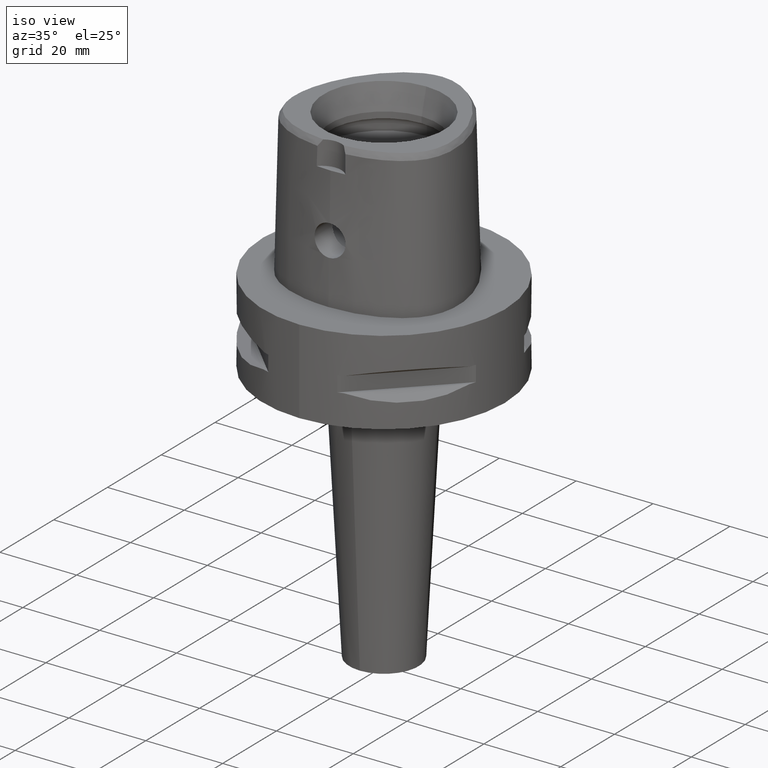
[diagram: clean part render]
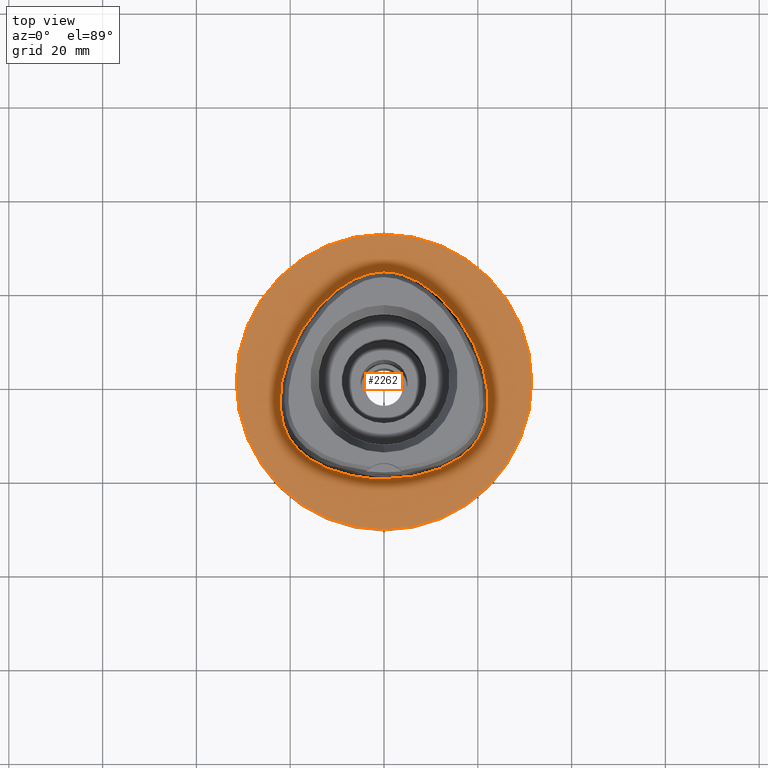
[diagram: tour spotlight — one face highlighted and labeled with its STEP entity id]
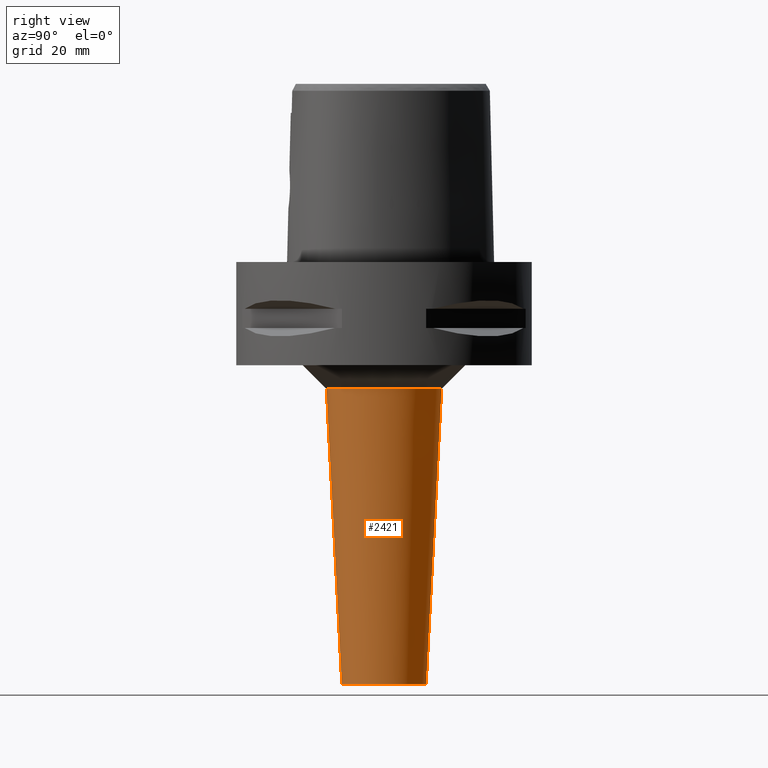
[diagram: tour spotlight — one face highlighted and labeled with its STEP entity id]
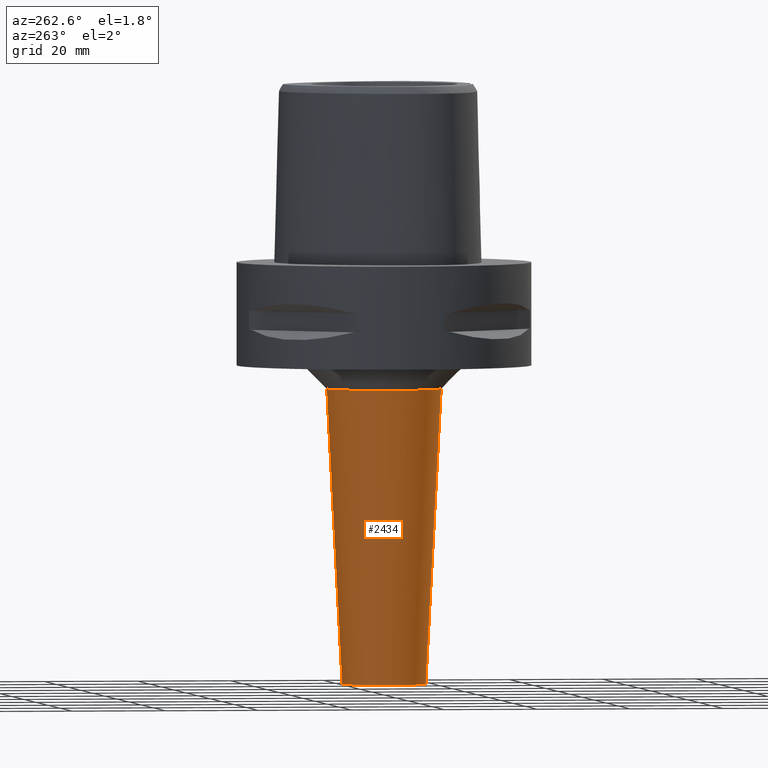
[diagram: tour spotlight — one face highlighted and labeled with its STEP entity id]
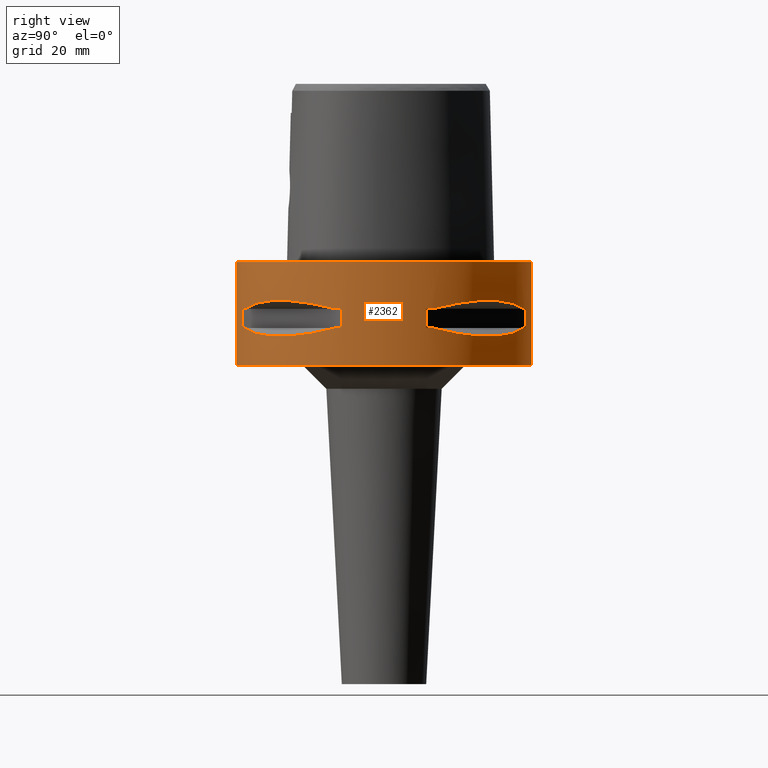
[diagram: tour spotlight — one face highlighted and labeled with its STEP entity id]
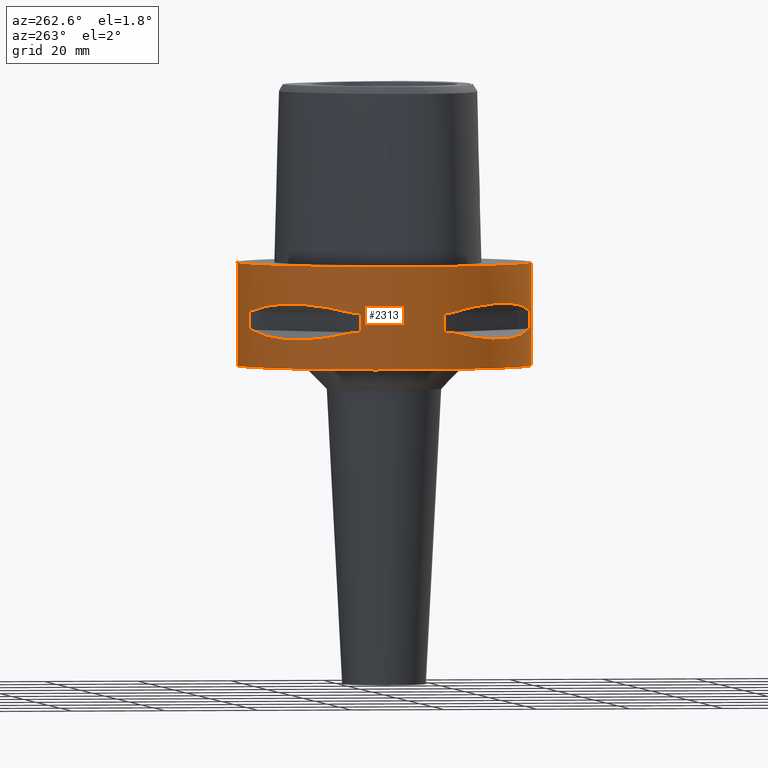
[diagram: tour spotlight — one face highlighted and labeled with its STEP entity id]
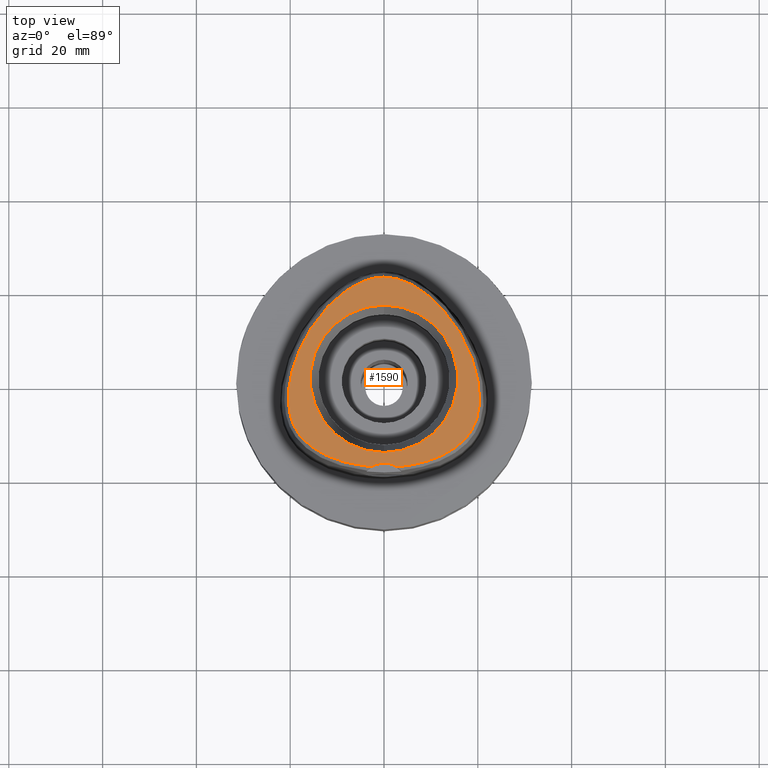
[diagram: tour spotlight — one face highlighted and labeled with its STEP entity id]
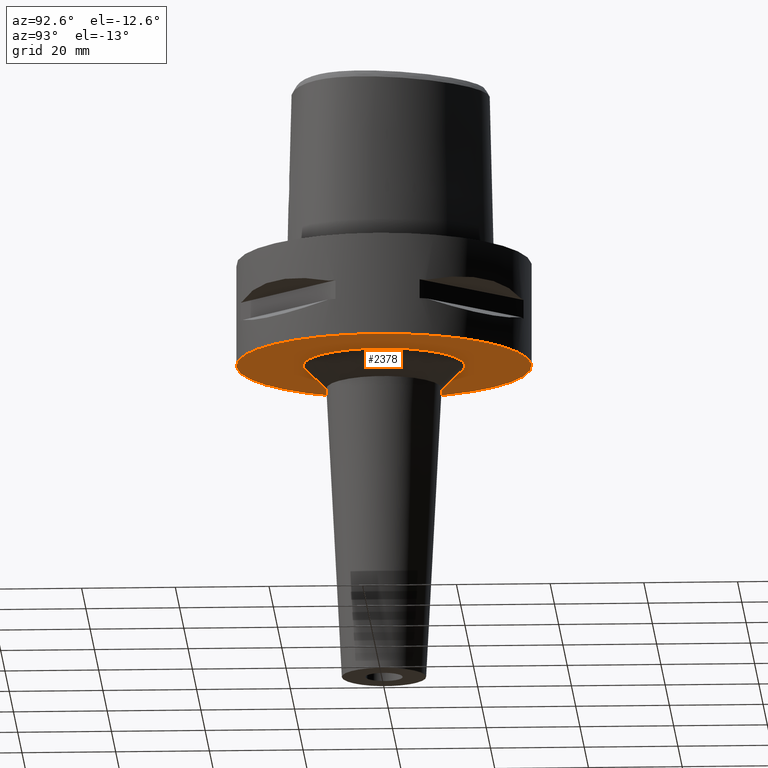
[diagram: tour spotlight — one face highlighted and labeled with its STEP entity id]
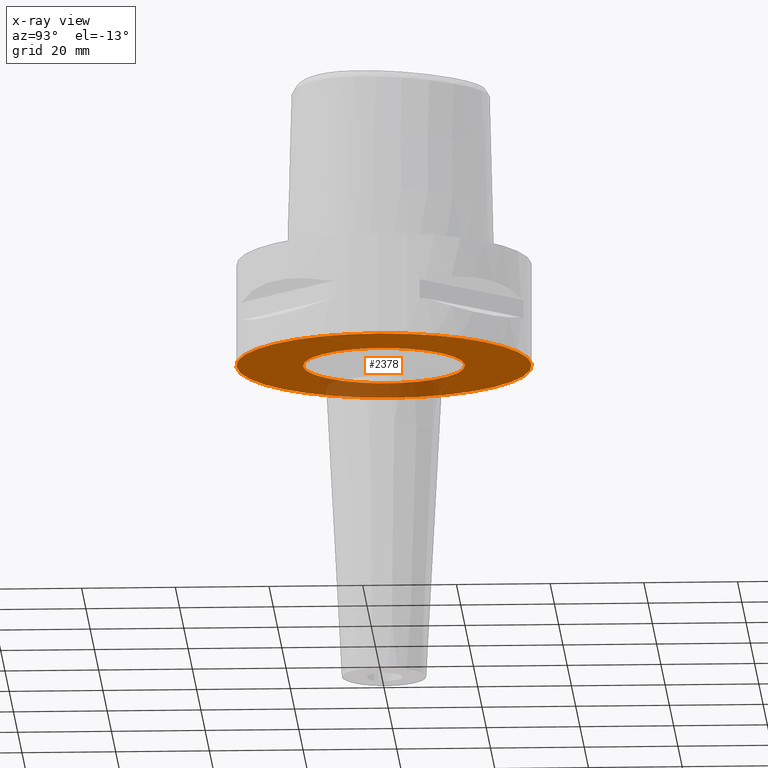
[diagram: x-ray of the same camera — body ghosted, this tour face saturated]
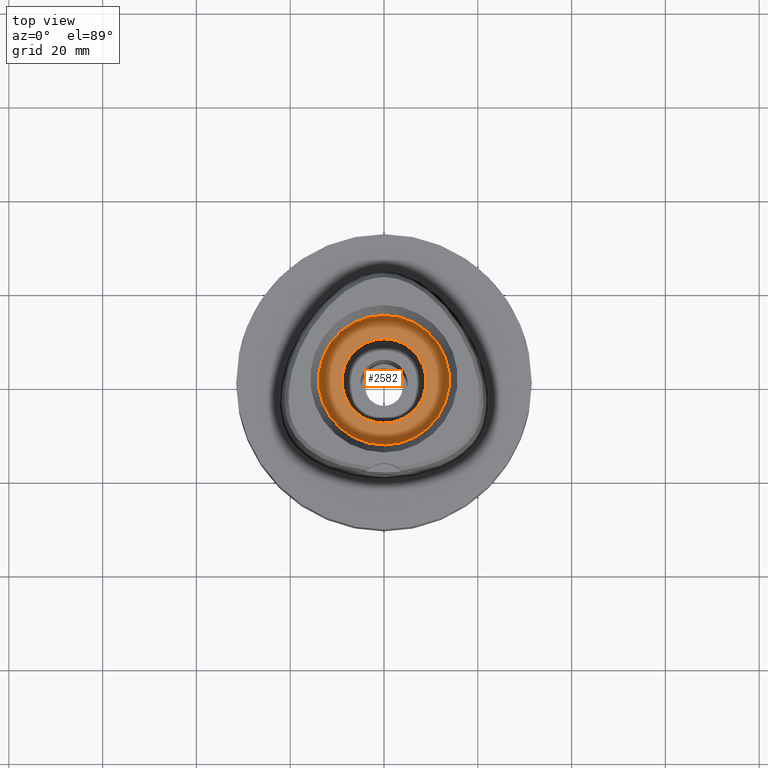
[diagram: tour spotlight — one face highlighted and labeled with its STEP entity id]
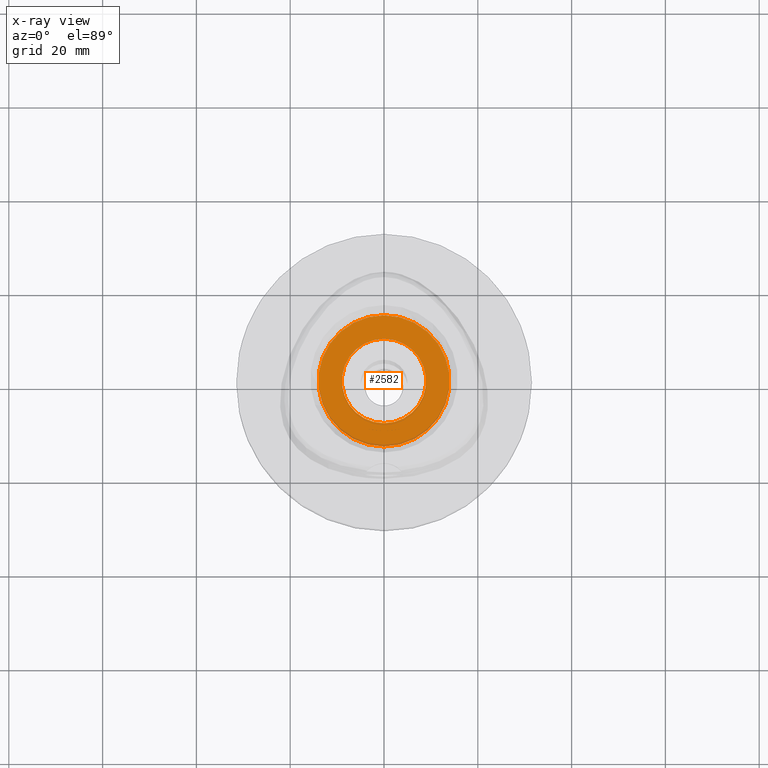
[diagram: x-ray of the same camera — body ghosted, this tour face saturated]
A machine part: a face-by-face anatomy tour. The part has 62 B-rep faces; the first image is the clean iso view, then the 8 largest visible faces are spotlighted one at a time (largest first), each with its STEP entity span.

Face 1 — top view, entity #2262. In plain terms, the highlighted planar face has unit normal (0, 0, -1).
Definition (entity closure, byte-faithful):
#292=CARTESIAN_POINT('',(0.E0,0.E0,0.E0));
#293=DIRECTION('',(0.E0,0.E0,-1.E0));
#294=DIRECTION('',(0.E0,-1.E0,0.E0));
#295=AXIS2_PLACEMENT_3D('',#292,#293,#294);
#300=CARTESIAN_POINT('',(0.E0,0.E0,0.E0));
#301=DIRECTION('',(0.E0,0.E0,-1.E0));
#302=DIRECTION('',(0.E0,1.E0,0.E0));
#303=AXIS2_PLACEMENT_3D('',#300,#301,#302);
#308=CARTESIAN_POINT('',(-1.044767888871E-11,-2.0675E1,1.298960938811E-13));
#309=CARTESIAN_POINT('',(9.158423632127E-1,-2.0675E1,1.298960938811E-13));
#310=CARTESIAN_POINT('',(2.716408396290E0,-2.060526959758E1,
-6.028498697032E-14));
#311=CARTESIAN_POINT('',(5.360849041373E0,-2.029895710666E1,
1.615331357442E-14));
#312=CARTESIAN_POINT('',(7.838067988409E0,-1.981278372945E1,0.E0));
#313=CARTESIAN_POINT('',(1.010273943016E1,-1.917806078717E1,0.E0));
#314=CARTESIAN_POINT('',(1.212665494295E1,-1.842788899745E1,0.E0));
#315=CARTESIAN_POINT('',(1.390528348451E1,-1.759281504158E1,0.E0));
#316=CARTESIAN_POINT('',(1.544933729303E1,-1.669720468576E1,0.E0));
#317=CARTESIAN_POINT('',(1.677709919822E1,-1.575929356149E1,0.E0));
#318=CARTESIAN_POINT('',(1.791070168285E1,-1.479064588104E1,0.E0));
#319=CARTESIAN_POINT('',(1.887150357261E1,-1.379790189981E1,0.E0));
#320=CARTESIAN_POINT('',(1.967839891391E1,-1.278369248367E1,0.E0));
#321=CARTESIAN_POINT('',(2.034936091072E1,-1.174528212922E1,0.E0));
#322=CARTESIAN_POINT('',(2.091159017696E1,-1.064674429548E1,0.E0));
#323=CARTESIAN_POINT('',(2.138527596063E1,-9.443658971421E0,0.E0));
#324=CARTESIAN_POINT('',(2.176498967857E1,-8.113513566853E0,0.E0));
#325=CARTESIAN_POINT('',(2.203671366422E1,-6.648064250119E0,0.E0));
#326=CARTESIAN_POINT('',(2.218501817423E1,-5.028396779115E0,0.E0));
#327=CARTESIAN_POINT('',(2.218834029708E1,-3.242572919162E0,0.E0));
#328=CARTESIAN_POINT('',(2.202182546398E1,-1.283710492372E0,0.E0));
#329=CARTESIAN_POINT('',(2.165887442515E1,8.453603315048E-1,0.E0));
#330=CARTESIAN_POINT('',(2.107560380030E1,3.124759078298E0,0.E0));
#331=CARTESIAN_POINT('',(2.025646054374E1,5.515187041284E0,0.E0));
#332=CARTESIAN_POINT('',(1.920073190327E1,7.955493648484E0,0.E0));
#333=CARTESIAN_POINT('',(1.792967904165E1,1.036468909786E1,0.E0));
#334=CARTESIAN_POINT('',(1.647710613861E1,1.266943998868E1,0.E0));
#335=CARTESIAN_POINT('',(1.489108143112E1,1.480166284189E1,0.E0));
#336=CARTESIAN_POINT('',(1.323030500653E1,1.670402183111E1,0.E0));
#337=CARTESIAN_POINT('',(1.154826681381E1,1.834637767515E1,0.E0));
#338=CARTESIAN_POINT('',(9.886689898430E0,1.972279202940E1,0.E0));
#339=CARTESIAN_POINT('',(8.274412956712E0,2.084428429182E1,0.E0));
#340=CARTESIAN_POINT('',(6.727228941432E0,2.173241213456E1,0.E0));
#341=CARTESIAN_POINT('',(5.251300805532E0,2.241232518975E1,0.E0));
#342=CARTESIAN_POINT('',(3.846167454409E0,2.290873349726E1,0.E0));
#343=CARTESIAN_POINT('',(2.506219438543E0,2.324356530458E1,1.578974896690E-14));
#344=CARTESIAN_POINT('',(1.225948313822E0,2.343451067084E1,
-5.892814538324E-14));
#345=CARTESIAN_POINT('',(4.030405167281E-1,2.347499999999E1,
1.269725065830E-13));
#346=CARTESIAN_POINT('',(5.434977773944E-11,2.347499999999E1,
1.269725065830E-13));
#351=CARTESIAN_POINT('',(5.434977773944E-11,2.347499999999E1,
1.269725065830E-13));
#352=CARTESIAN_POINT('',(-4.030501311839E-1,2.347499999999E1,
1.269725065830E-13));
#353=CARTESIAN_POINT('',(-1.225941998256E0,2.343451160779E1,
-5.892814538324E-14));
#354=CARTESIAN_POINT('',(-2.506176665873E0,2.324356707891E1,
1.578974896690E-14));
#355=CARTESIAN_POINT('',(-3.845796668516E0,2.290883543718E1,0.E0));
#356=CARTESIAN_POINT('',(-5.250746147550E0,2.241254569104E1,0.E0));
#357=CARTESIAN_POINT('',(-6.726516064720E0,2.173277639394E1,0.E0));
#358=CARTESIAN_POINT('',(-8.273641246778E0,2.084477362547E1,0.E0));
#359=CARTESIAN_POINT('',(-9.885913422894E0,1.972338100359E1,0.E0));
#360=CARTESIAN_POINT('',(-1.154744726761E1,1.834711606382E1,0.E0));
#361=CARTESIAN_POINT('',(-1.322945947942E1,1.670490312677E1,0.E0));
#362=CARTESIAN_POINT('',(-1.488998375980E1,1.480301826078E1,0.E0));
#363=CARTESIAN_POINT('',(-1.647600663520E1,1.267100928078E1,0.E0));
#364=CARTESIAN_POINT('',(-1.792806340323E1,1.036743994301E1,0.E0));
#365=CARTESIAN_POINT('',(-1.919922487795E1,7.958616034094E0,0.E0));
#366=CARTESIAN_POINT('',(-2.025496370791E1,5.518994401160E0,0.E0));
#367=CARTESIAN_POINT('',(-2.107426163142E1,3.129172675912E0,0.E0));
#368=CARTESIAN_POINT('',(-2.165777423345E1,8.504171987537E-1,0.E0));
#369=CARTESIAN_POINT('',(-2.202111550992E1,-1.278299047426E0,0.E0));
#370=CARTESIAN_POINT('',(-2.218808757016E1,-3.236928503895E0,0.E0));
#371=CARTESIAN_POINT('',(-2.218526770248E1,-5.022718452615E0,0.E0));
#372=CARTESIAN_POINT('',(-2.203747271344E1,-6.642517845332E0,0.E0));
#373=CARTESIAN_POINT('',(-2.176617229092E1,-8.108523993480E0,0.E0));
#374=CARTESIAN_POINT('',(-2.138677834896E1,-9.439129148101E0,0.E0));
#375=CARTESIAN_POINT('',(-2.091376839585E1,-1.064202520385E1,0.E0));
#376=CARTESIAN_POINT('',(-2.035024914663E1,-1.174401299512E1,0.E0));
#377=CARTESIAN_POINT('',(-1.967806989895E1,-1.278412507066E1,0.E0));
#378=CARTESIAN_POINT('',(-1.887223540840E1,-1.379701833718E1,0.E0));
#379=CARTESIAN_POINT('',(-1.791140476887E1,-1.478999919802E1,0.E0));
#380=CARTESIAN_POINT('',(-1.677813911649E1,-1.575847054695E1,0.E0));
#381=CARTESIAN_POINT('',(-1.545062996871E1,-1.669637509083E1,0.E0));
#382=CARTESIAN_POINT('',(-1.390671501554E1,-1.759207676081E1,0.E0));
#383=CARTESIAN_POINT('',(-1.212778375120E1,-1.842742743536E1,0.E0));
#384=CARTESIAN_POINT('',(-1.010373641256E1,-1.917775025560E1,0.E0));
#385=CARTESIAN_POINT('',(-7.838492822531E0,-1.981269760954E1,0.E0));
#386=CARTESIAN_POINT('',(-5.361005632779E0,-2.029893781401E1,
1.615331357442E-14));
#387=CARTESIAN_POINT('',(-2.716376248306E0,-2.060527506761E1,
-6.028498697032E-14));
#388=CARTESIAN_POINT('',(-9.158142642990E-1,-2.0675E1,1.298960938811E-13));
#389=CARTESIAN_POINT('',(-1.044767888871E-11,-2.0675E1,1.298960938811E-13));
#1434=VERTEX_POINT('',#351);
#1435=VERTEX_POINT('',#389);
#1440=CARTESIAN_POINT('',(0.E0,-3.15E1,0.E0));
#1441=CARTESIAN_POINT('',(0.E0,3.15E1,0.E0));
#1442=VERTEX_POINT('',#1440);
#1443=VERTEX_POINT('',#1441);
#2246=CARTESIAN_POINT('',(0.E0,0.E0,0.E0));
#2247=DIRECTION('',(0.E0,0.E0,-1.E0));
#2248=DIRECTION('',(0.E0,-1.E0,0.E0));
#2249=AXIS2_PLACEMENT_3D('',#2246,#2247,#2248);
#2250=PLANE('',#2249);
#2252=ORIENTED_EDGE('',*,*,#2251,.T.);
#2254=ORIENTED_EDGE('',*,*,#2253,.T.);
#2255=EDGE_LOOP('',(#2252,#2254));
#2256=FACE_OUTER_BOUND('',#2255,.F.);
#2258=ORIENTED_EDGE('',*,*,#2257,.T.);
#2259=ORIENTED_EDGE('',*,*,#2229,.T.);
#2260=EDGE_LOOP('',(#2258,#2259));
#2261=FACE_BOUND('',#2260,.F.);
#296=CIRCLE('',#295,3.15E1);
#304=CIRCLE('',#303,3.15E1);
#347=B_SPLINE_CURVE_WITH_KNOTS('',3,(#308,#309,#310,#311,#312,#313,#314,#315,
#316,#317,#318,#319,#320,#321,#322,#323,#324,#325,#326,#327,#328,#329,#330,#331,
#332,#333,#334,#335,#336,#337,#338,#339,#340,#341,#342,#343,#344,#345,#346),
.UNSPECIFIED.,.F.,.F.,(4,1,1,1,1,1,1,1,1,1,1,1,1,1,1,1,1,1,1,1,1,1,1,1,1,1,1,1,
1,1,1,1,1,1,1,1,4),(0.E0,2.777777777778E-2,5.555555555556E-2,8.333333333333E-2,
1.111111111111E-1,1.388888888889E-1,1.666666666667E-1,1.944444444444E-1,
2.222222222222E-1,2.5E-1,2.777777777778E-1,3.055555555556E-1,3.333333333333E-1,
3.611111111111E-1,3.888888888889E-1,4.166666666667E-1,4.444444444444E-1,
4.722222222222E-1,5.E-1,5.277777777778E-1,5.555555555556E-1,5.833333333333E-1,
6.111111111111E-1,6.388888888889E-1,6.666666666667E-1,6.944444444444E-1,
7.222222222222E-1,7.5E-1,7.777777777778E-1,8.055555555556E-1,8.333333333333E-1,
8.611111111111E-1,8.888888888889E-1,9.166666666667E-1,9.444444444444E-1,
9.722222222222E-1,1.E0),.UNSPECIFIED.);
#390=B_SPLINE_CURVE_WITH_KNOTS('',3,(#351,#352,#353,#354,#355,#356,#357,#358,
#359,#360,#361,#362,#363,#364,#365,#366,#367,#368,#369,#370,#371,#372,#373,#374,
#375,#376,#377,#378,#379,#380,#381,#382,#383,#384,#385,#386,#387,#388,#389),
.UNSPECIFIED.,.F.,.F.,(4,1,1,1,1,1,1,1,1,1,1,1,1,1,1,1,1,1,1,1,1,1,1,1,1,1,1,1,
1,1,1,1,1,1,1,1,4),(0.E0,2.777777777778E-2,5.555555555556E-2,8.333333333333E-2,
1.111111111111E-1,1.388888888889E-1,1.666666666667E-1,1.944444444444E-1,
2.222222222222E-1,2.5E-1,2.777777777778E-1,3.055555555556E-1,3.333333333333E-1,
3.611111111111E-1,3.888888888889E-1,4.166666666667E-1,4.444444444444E-1,
4.722222222222E-1,5.E-1,5.277777777778E-1,5.555555555556E-1,5.833333333333E-1,
6.111111111111E-1,6.388888888889E-1,6.666666666667E-1,6.944444444444E-1,
7.222222222222E-1,7.5E-1,7.777777777778E-1,8.055555555556E-1,8.333333333333E-1,
8.611111111111E-1,8.888888888889E-1,9.166666666667E-1,9.444444444444E-1,
9.722222222222E-1,1.E0),.UNSPECIFIED.);
#2229=EDGE_CURVE('',#1434,#1435,#390,.T.);
#2251=EDGE_CURVE('',#1442,#1443,#296,.T.);
#2253=EDGE_CURVE('',#1443,#1442,#304,.T.);
#2257=EDGE_CURVE('',#1435,#1434,#347,.T.);
#2262=ADVANCED_FACE('',(#2256,#2261),#2250,.F.);

Face 2 — right view, entity #2421. In plain terms, the highlighted conical surface has half-angle 3 deg.
Definition (entity closure, byte-faithful):
#562=DIRECTION('',(0.E0,-5.233595624292E-2,-9.986295347546E-1));
#563=VECTOR('',#562,6.308645779787E1);
#564=CARTESIAN_POINT('',(0.E0,1.230169009483E1,-2.7E1));
#565=LINE('',#564,#563);
#569=CARTESIAN_POINT('',(0.E0,0.E0,-2.7E1));
#570=DIRECTION('',(0.E0,0.E0,1.E0));
#571=DIRECTION('',(0.E0,-1.E0,0.E0));
#572=AXIS2_PLACEMENT_3D('',#569,#570,#571);
#577=DIRECTION('',(0.E0,5.233595624292E-2,-9.986295347546E-1));
#578=VECTOR('',#577,6.308645779787E1);
#579=CARTESIAN_POINT('',(0.E0,-1.230169009483E1,-2.7E1));
#580=LINE('',#579,#578);
#584=CARTESIAN_POINT('',(0.E0,0.E0,-9.E1));
#585=DIRECTION('',(0.E0,0.E0,1.E0));
#586=DIRECTION('',(0.E0,-1.E0,0.E0));
#587=AXIS2_PLACEMENT_3D('',#584,#585,#586);
#1504=CARTESIAN_POINT('',(0.E0,1.230169009483E1,-2.7E1));
#1505=VERTEX_POINT('',#1504);
#1506=CARTESIAN_POINT('',(0.E0,-1.230169009483E1,-2.7E1));
#1507=VERTEX_POINT('',#1506);
#1508=CARTESIAN_POINT('',(0.E0,9.000000000003E0,-9.E1));
#1509=VERTEX_POINT('',#1508);
#1510=CARTESIAN_POINT('',(0.E0,-9.000000000004E0,-9.E1));
#1511=VERTEX_POINT('',#1510);
#2407=CARTESIAN_POINT('',(0.E0,0.E0,-5.85E1));
#2408=DIRECTION('',(0.E0,0.E0,1.E0));
#2409=DIRECTION('',(0.E0,1.E0,0.E0));
#2410=AXIS2_PLACEMENT_3D('',#2407,#2408,#2409);
#2411=CONICAL_SURFACE('',#2410,1.065084504742E1,3.E0);
#2413=ORIENTED_EDGE('',*,*,#2412,.T.);
#2415=ORIENTED_EDGE('',*,*,#2414,.F.);
#2417=ORIENTED_EDGE('',*,*,#2416,.F.);
#2418=ORIENTED_EDGE('',*,*,#2400,.T.);
#2419=EDGE_LOOP('',(#2413,#2415,#2417,#2418));
#2420=FACE_OUTER_BOUND('',#2419,.F.);
#573=CIRCLE('',#572,1.230169009484E1);
#588=CIRCLE('',#587,9.000000000004E0);
#2400=EDGE_CURVE('',#1507,#1505,#573,.T.);
#2412=EDGE_CURVE('',#1505,#1509,#565,.T.);
#2414=EDGE_CURVE('',#1511,#1509,#588,.T.);
#2416=EDGE_CURVE('',#1507,#1511,#580,.T.);
#2421=ADVANCED_FACE('',(#2420),#2411,.T.);

Face 3 — auxiliary view, entity #2434. In plain terms, the highlighted conical surface has half-angle 3 deg.
Definition (entity closure, byte-faithful):
#547=CARTESIAN_POINT('',(0.E0,0.E0,-2.7E1));
#548=DIRECTION('',(0.E0,0.E0,-1.E0));
#549=DIRECTION('',(0.E0,-1.E0,0.E0));
#550=AXIS2_PLACEMENT_3D('',#547,#548,#549);
#562=DIRECTION('',(0.E0,-5.233595624292E-2,-9.986295347546E-1));
#563=VECTOR('',#562,6.308645779787E1);
#564=CARTESIAN_POINT('',(0.E0,1.230169009483E1,-2.7E1));
#565=LINE('',#564,#563);
#577=DIRECTION('',(0.E0,5.233595624292E-2,-9.986295347546E-1));
#578=VECTOR('',#577,6.308645779787E1);
#579=CARTESIAN_POINT('',(0.E0,-1.230169009483E1,-2.7E1));
#580=LINE('',#579,#578);
#592=CARTESIAN_POINT('',(0.E0,0.E0,-9.E1));
#593=DIRECTION('',(0.E0,0.E0,1.E0));
#594=DIRECTION('',(0.E0,1.E0,0.E0));
#595=AXIS2_PLACEMENT_3D('',#592,#593,#594);
#1504=CARTESIAN_POINT('',(0.E0,1.230169009483E1,-2.7E1));
#1505=VERTEX_POINT('',#1504);
#1506=CARTESIAN_POINT('',(0.E0,-1.230169009483E1,-2.7E1));
#1507=VERTEX_POINT('',#1506);
#1508=CARTESIAN_POINT('',(0.E0,9.000000000003E0,-9.E1));
#1509=VERTEX_POINT('',#1508);
#1510=CARTESIAN_POINT('',(0.E0,-9.000000000004E0,-9.E1));
#1511=VERTEX_POINT('',#1510);
#2422=CARTESIAN_POINT('',(0.E0,0.E0,-5.85E1));
#2423=DIRECTION('',(0.E0,0.E0,1.E0));
#2424=DIRECTION('',(0.E0,1.E0,0.E0));
#2425=AXIS2_PLACEMENT_3D('',#2422,#2423,#2424);
#2426=CONICAL_SURFACE('',#2425,1.065084504742E1,3.E0);
#2427=ORIENTED_EDGE('',*,*,#2412,.F.);
#2428=ORIENTED_EDGE('',*,*,#2389,.F.);
#2429=ORIENTED_EDGE('',*,*,#2416,.T.);
#2431=ORIENTED_EDGE('',*,*,#2430,.F.);
#2432=EDGE_LOOP('',(#2427,#2428,#2429,#2431));
#2433=FACE_OUTER_BOUND('',#2432,.F.);
#551=CIRCLE('',#550,1.230169009483E1);
#596=CIRCLE('',#595,9.000000000004E0);
#2389=EDGE_CURVE('',#1507,#1505,#551,.T.);
#2412=EDGE_CURVE('',#1505,#1509,#565,.T.);
#2416=EDGE_CURVE('',#1507,#1511,#580,.T.);
#2430=EDGE_CURVE('',#1509,#1511,#596,.T.);
#2434=ADVANCED_FACE('',(#2433),#2426,.T.);

Face 4 — right view, entity #2362. In plain terms, the highlighted cylindrical surface (partial cylindrical patch) has radius 31.5 mm, axis along (0, 0, -1).
Definition (entity closure, byte-faithful):
#300=CARTESIAN_POINT('',(0.E0,0.E0,0.E0));
#301=DIRECTION('',(0.E0,0.E0,-1.E0));
#302=DIRECTION('',(0.E0,1.E0,0.E0));
#303=AXIS2_PLACEMENT_3D('',#300,#301,#302);
#394=DIRECTION('',(0.E0,0.E0,-1.E0));
#395=VECTOR('',#394,2.2E1);
#396=CARTESIAN_POINT('',(0.E0,-3.15E1,0.E0));
#397=LINE('',#396,#395);
#451=DIRECTION('',(0.E0,0.E0,-1.E0));
#452=VECTOR('',#451,2.2E1);
#453=CARTESIAN_POINT('',(0.E0,3.15E1,0.E0));
#454=LINE('',#453,#452);
#458=DIRECTION('',(0.E0,0.E0,-1.E0));
#459=VECTOR('',#458,4.1E0);
#460=CARTESIAN_POINT('',(8.981198972017E0,-3.019251670572E1,-9.95E0));
#461=LINE('',#460,#459);
#465=CARTESIAN_POINT('',(1.044775724750E1,-2.971690375018E1,-1.405E1));
#466=CARTESIAN_POINT('',(1.282388988809E1,-2.888151197365E1,-1.467900482380E1));
#467=CARTESIAN_POINT('',(1.711282138769E1,-2.674739463903E1,-1.555870402293E1));
#468=CARTESIAN_POINT('',(2.244574140438E1,-2.244574140438E1,-1.597971692371E1));
#469=CARTESIAN_POINT('',(2.674739463903E1,-1.711282138769E1,-1.555870402293E1));
#470=CARTESIAN_POINT('',(2.888151197365E1,-1.282388988809E1,-1.467900482380E1));
#471=CARTESIAN_POINT('',(2.971690375018E1,-1.044775724750E1,-1.405E1));
#476=DIRECTION('',(0.E0,0.E0,1.E0));
#477=VECTOR('',#476,4.1E0);
#478=CARTESIAN_POINT('',(3.019251670572E1,-8.981198972017E0,-1.405E1));
#479=LINE('',#478,#477);
#483=DIRECTION('',(0.E0,0.E0,-1.E0));
#484=VECTOR('',#483,4.1E0);
#485=CARTESIAN_POINT('',(3.019251670572E1,8.981198972017E0,-9.95E0));
#486=LINE('',#485,#484);
#490=CARTESIAN_POINT('',(2.971690375018E1,1.044775724750E1,-1.405E1));
#491=CARTESIAN_POINT('',(2.888151197365E1,1.282388988809E1,-1.467900482380E1));
#492=CARTESIAN_POINT('',(2.674739463903E1,1.711282138769E1,-1.555870402293E1));
#493=CARTESIAN_POINT('',(2.244574140438E1,2.244574140438E1,-1.597971692371E1));
#494=CARTESIAN_POINT('',(1.711282138769E1,2.674739463903E1,-1.555870402293E1));
#495=CARTESIAN_POINT('',(1.282388988809E1,2.888151197365E1,-1.467900482380E1));
#496=CARTESIAN_POINT('',(1.044775724750E1,2.971690375018E1,-1.405E1));
#501=DIRECTION('',(0.E0,0.E0,1.E0));
#502=VECTOR('',#501,4.1E0);
#503=CARTESIAN_POINT('',(8.981198972017E0,3.019251670572E1,-1.405E1));
#504=LINE('',#503,#502);
#508=CARTESIAN_POINT('',(0.E0,0.E0,-2.2E1));
#509=DIRECTION('',(0.E0,0.E0,1.E0));
#510=DIRECTION('',(0.E0,-1.E0,0.E0));
#511=AXIS2_PLACEMENT_3D('',#508,#509,#510);
#1130=CARTESIAN_POINT('',(1.044775724750E1,-2.971690375018E1,
-9.950000000001E0));
#1131=CARTESIAN_POINT('',(1.282388988809E1,-2.888151197365E1,
-9.320995176200E0));
#1132=CARTESIAN_POINT('',(1.711282138769E1,-2.674739463903E1,
-8.441295977077E0));
#1133=CARTESIAN_POINT('',(2.244574140438E1,-2.244574140438E1,
-8.020283076297E0));
#1134=CARTESIAN_POINT('',(2.674739463903E1,-1.711282138769E1,
-8.441295977077E0));
#1135=CARTESIAN_POINT('',(2.888151197365E1,-1.282388988809E1,
-9.320995176200E0));
#1136=CARTESIAN_POINT('',(2.971690375018E1,-1.044775724750E1,
-9.950000000001E0));
#1141=CARTESIAN_POINT('',(0.E0,0.E0,-9.95E0));
#1142=DIRECTION('',(0.E0,0.E0,1.E0));
#1143=DIRECTION('',(9.433937698469E-1,-3.316748332541E-1,0.E0));
#1144=AXIS2_PLACEMENT_3D('',#1141,#1142,#1143);
#1149=CARTESIAN_POINT('',(0.E0,0.E0,-9.95E0));
#1150=DIRECTION('',(0.E0,0.E0,1.E0));
#1151=DIRECTION('',(2.851174276832E-1,-9.584925938323E-1,0.E0));
#1152=AXIS2_PLACEMENT_3D('',#1149,#1150,#1151);
#1171=CARTESIAN_POINT('',(0.E0,0.E0,-1.405E1));
#1172=DIRECTION('',(0.E0,0.E0,-1.E0));
#1173=DIRECTION('',(9.584925938323E-1,-2.851174276832E-1,0.E0));
#1174=AXIS2_PLACEMENT_3D('',#1171,#1172,#1173);
#1179=CARTESIAN_POINT('',(0.E0,0.E0,-1.405E1));
#1180=DIRECTION('',(0.E0,0.E0,-1.E0));
#1181=DIRECTION('',(3.316748332541E-1,-9.433937698469E-1,0.E0));
#1182=AXIS2_PLACEMENT_3D('',#1179,#1180,#1181);
#1201=CARTESIAN_POINT('',(2.971690375018E1,1.044775724750E1,-9.950000000001E0));
#1202=CARTESIAN_POINT('',(2.888151197365E1,1.282388988809E1,-9.320995176200E0));
#1203=CARTESIAN_POINT('',(2.674739463903E1,1.711282138769E1,-8.441295977077E0));
#1204=CARTESIAN_POINT('',(2.244574140438E1,2.244574140438E1,-8.020283076297E0));
#1205=CARTESIAN_POINT('',(1.711282138769E1,2.674739463903E1,-8.441295977077E0));
#1206=CARTESIAN_POINT('',(1.282388988809E1,2.888151197365E1,-9.320995176200E0));
#1207=CARTESIAN_POINT('',(1.044775724750E1,2.971690375018E1,-9.950000000001E0));
#1212=CARTESIAN_POINT('',(0.E0,0.E0,-9.95E0));
#1213=DIRECTION('',(0.E0,0.E0,1.E0));
#1214=DIRECTION('',(3.316748332541E-1,9.433937698469E-1,0.E0));
#1215=AXIS2_PLACEMENT_3D('',#1212,#1213,#1214);
#1220=CARTESIAN_POINT('',(0.E0,0.E0,-9.95E0));
#1221=DIRECTION('',(0.E0,0.E0,1.E0));
#1222=DIRECTION('',(9.584925938323E-1,2.851174276832E-1,0.E0));
#1223=AXIS2_PLACEMENT_3D('',#1220,#1221,#1222);
#1242=CARTESIAN_POINT('',(0.E0,0.E0,-1.405E1));
#1243=DIRECTION('',(0.E0,0.E0,-1.E0));
#1244=DIRECTION('',(2.851174276832E-1,9.584925938323E-1,0.E0));
#1245=AXIS2_PLACEMENT_3D('',#1242,#1243,#1244);
#1250=CARTESIAN_POINT('',(0.E0,0.E0,-1.405E1));
#1251=DIRECTION('',(0.E0,0.E0,-1.E0));
#1252=DIRECTION('',(9.433937698469E-1,3.316748332541E-1,0.E0));
#1253=AXIS2_PLACEMENT_3D('',#1250,#1251,#1252);
#1440=CARTESIAN_POINT('',(0.E0,-3.15E1,0.E0));
#1441=CARTESIAN_POINT('',(0.E0,3.15E1,0.E0));
#1442=VERTEX_POINT('',#1440);
#1443=VERTEX_POINT('',#1441);
#1444=CARTESIAN_POINT('',(0.E0,3.15E1,-2.2E1));
#1445=VERTEX_POINT('',#1444);
#1446=CARTESIAN_POINT('',(0.E0,-3.15E1,-2.2E1));
#1447=VERTEX_POINT('',#1446);
#1474=VERTEX_POINT('',#1130);
#1475=VERTEX_POINT('',#1136);
#1476=CARTESIAN_POINT('',(8.981198972020E0,-3.019251670572E1,-9.95E0));
#1477=VERTEX_POINT('',#1476);
#1478=CARTESIAN_POINT('',(8.981198972017E0,-3.019251670572E1,-1.405E1));
#1479=VERTEX_POINT('',#1478);
#1480=CARTESIAN_POINT('',(1.044775724750E1,-2.971690375018E1,-1.405E1));
#1481=VERTEX_POINT('',#1480);
#1482=VERTEX_POINT('',#471);
#1483=CARTESIAN_POINT('',(3.019251670572E1,-8.981198972020E0,-1.405E1));
#1484=VERTEX_POINT('',#1483);
#1485=CARTESIAN_POINT('',(3.019251670572E1,-8.981198972017E0,-9.95E0));
#1486=VERTEX_POINT('',#1485);
#1487=VERTEX_POINT('',#1201);
#1488=VERTEX_POINT('',#1207);
#1489=CARTESIAN_POINT('',(3.019251670572E1,8.981198972020E0,-9.95E0));
#1490=VERTEX_POINT('',#1489);
#1491=CARTESIAN_POINT('',(3.019251670572E1,8.981198972017E0,-1.405E1));
#1492=VERTEX_POINT('',#1491);
#1493=CARTESIAN_POINT('',(2.971690375018E1,1.044775724750E1,-1.405E1));
#1494=VERTEX_POINT('',#1493);
#1495=VERTEX_POINT('',#496);
#1496=CARTESIAN_POINT('',(8.981198972020E0,3.019251670572E1,-1.405E1));
#1497=VERTEX_POINT('',#1496);
#1498=CARTESIAN_POINT('',(8.981198972017E0,3.019251670572E1,-9.95E0));
#1499=VERTEX_POINT('',#1498);
#2314=CARTESIAN_POINT('',(0.E0,0.E0,4.5E0));
#2315=DIRECTION('',(0.E0,0.E0,-1.E0));
#2316=DIRECTION('',(0.E0,-1.E0,0.E0));
#2317=AXIS2_PLACEMENT_3D('',#2314,#2315,#2316);
#2318=CYLINDRICAL_SURFACE('',#2317,3.15E1);
#2319=ORIENTED_EDGE('',*,*,#2268,.T.);
#2321=ORIENTED_EDGE('',*,*,#2320,.F.);
#2322=ORIENTED_EDGE('',*,*,#2271,.F.);
#2323=ORIENTED_EDGE('',*,*,#2253,.F.);
#2324=EDGE_LOOP('',(#2319,#2321,#2322,#2323));
#2325=FACE_OUTER_BOUND('',#2324,.F.);
#2327=ORIENTED_EDGE('',*,*,#2326,.F.);
#2329=ORIENTED_EDGE('',*,*,#2328,.F.);
#2331=ORIENTED_EDGE('',*,*,#2330,.T.);
#2333=ORIENTED_EDGE('',*,*,#2332,.F.);
#2335=ORIENTED_EDGE('',*,*,#2334,.T.);
#2337=ORIENTED_EDGE('',*,*,#2336,.F.);
#2339=ORIENTED_EDGE('',*,*,#2338,.T.);
#2341=ORIENTED_EDGE('',*,*,#2340,.F.);
#2342=EDGE_LOOP('',(#2327,#2329,#2331,#2333,#2335,#2337,#2339,#2341));
#2343=FACE_BOUND('',#2342,.F.);
#2345=ORIENTED_EDGE('',*,*,#2344,.F.);
#2347=ORIENTED_EDGE('',*,*,#2346,.F.);
#2349=ORIENTED_EDGE('',*,*,#2348,.T.);
#2351=ORIENTED_EDGE('',*,*,#2350,.F.);
#2353=ORIENTED_EDGE('',*,*,#2352,.T.);
#2355=ORIENTED_EDGE('',*,*,#2354,.F.);
#2357=ORIENTED_EDGE('',*,*,#2356,.T.);
#2359=ORIENTED_EDGE('',*,*,#2358,.F.);
#2360=EDGE_LOOP('',(#2345,#2347,#2349,#2351,#2353,#2355,#2357,#2359));
#2361=FACE_BOUND('',#2360,.F.);
#304=CIRCLE('',#303,3.15E1);
#472=B_SPLINE_CURVE_WITH_KNOTS('',3,(#465,#466,#467,#468,#469,#470,#471),
.UNSPECIFIED.,.F.,.F.,(4,1,1,1,4),(0.E0,2.5E-1,5.E-1,7.5E-1,1.E0),
.UNSPECIFIED.);
#497=B_SPLINE_CURVE_WITH_KNOTS('',3,(#490,#491,#492,#493,#494,#495,#496),
.UNSPECIFIED.,.F.,.F.,(4,1,1,1,4),(0.E0,2.5E-1,5.E-1,7.5E-1,1.E0),
.UNSPECIFIED.);
#512=CIRCLE('',#511,3.15E1);
#1137=B_SPLINE_CURVE_WITH_KNOTS('',3,(#1130,#1131,#1132,#1133,#1134,#1135,
#1136),.UNSPECIFIED.,.F.,.F.,(4,1,1,1,4),(0.E0,2.5E-1,5.E-1,7.5E-1,1.E0),
.UNSPECIFIED.);
#1145=CIRCLE('',#1144,3.15E1);
#1153=CIRCLE('',#1152,3.15E1);
#1175=CIRCLE('',#1174,3.15E1);
#1183=CIRCLE('',#1182,3.15E1);
#1208=B_SPLINE_CURVE_WITH_KNOTS('',3,(#1201,#1202,#1203,#1204,#1205,#1206,
#1207),.UNSPECIFIED.,.F.,.F.,(4,1,1,1,4),(0.E0,2.5E-1,5.E-1,7.5E-1,1.E0),
.UNSPECIFIED.);
#1216=CIRCLE('',#1215,3.15E1);
#1224=CIRCLE('',#1223,3.15E1);
#1246=CIRCLE('',#1245,3.15E1);
#1254=CIRCLE('',#1253,3.15E1);
#2253=EDGE_CURVE('',#1443,#1442,#304,.T.);
#2268=EDGE_CURVE('',#1443,#1445,#454,.T.);
#2271=EDGE_CURVE('',#1442,#1447,#397,.T.);
#2320=EDGE_CURVE('',#1447,#1445,#512,.T.);
#2326=EDGE_CURVE('',#1474,#1475,#1137,.T.);
#2328=EDGE_CURVE('',#1477,#1474,#1153,.T.);
#2330=EDGE_CURVE('',#1477,#1479,#461,.T.);
#2332=EDGE_CURVE('',#1481,#1479,#1183,.T.);
#2334=EDGE_CURVE('',#1481,#1482,#472,.T.);
#2336=EDGE_CURVE('',#1484,#1482,#1175,.T.);
#2338=EDGE_CURVE('',#1484,#1486,#479,.T.);
#2340=EDGE_CURVE('',#1475,#1486,#1145,.T.);
#2344=EDGE_CURVE('',#1487,#1488,#1208,.T.);
#2346=EDGE_CURVE('',#1490,#1487,#1224,.T.);
#2348=EDGE_CURVE('',#1490,#1492,#486,.T.);
#2350=EDGE_CURVE('',#1494,#1492,#1254,.T.);
#2352=EDGE_CURVE('',#1494,#1495,#497,.T.);
#2354=EDGE_CURVE('',#1497,#1495,#1246,.T.);
#2356=EDGE_CURVE('',#1497,#1499,#504,.T.);
#2358=EDGE_CURVE('',#1488,#1499,#1216,.T.);
#2362=ADVANCED_FACE('',(#2325,#2343,#2361),#2318,.T.);

Face 5 — auxiliary view, entity #2313. In plain terms, the highlighted cylindrical surface (partial cylindrical patch) has radius 31.5 mm, axis along (0, 0, -1).
Definition (entity closure, byte-faithful):
#292=CARTESIAN_POINT('',(0.E0,0.E0,0.E0));
#293=DIRECTION('',(0.E0,0.E0,-1.E0));
#294=DIRECTION('',(0.E0,-1.E0,0.E0));
#295=AXIS2_PLACEMENT_3D('',#292,#293,#294);
#394=DIRECTION('',(0.E0,0.E0,-1.E0));
#395=VECTOR('',#394,2.2E1);
#396=CARTESIAN_POINT('',(0.E0,-3.15E1,0.E0));
#397=LINE('',#396,#395);
#401=DIRECTION('',(0.E0,0.E0,-1.E0));
#402=VECTOR('',#401,4.1E0);
#403=CARTESIAN_POINT('',(-8.981198972017E0,3.019251670572E1,-9.95E0));
#404=LINE('',#403,#402);
#408=CARTESIAN_POINT('',(-1.044775724750E1,2.971690375018E1,-1.405E1));
#409=CARTESIAN_POINT('',(-1.282388988809E1,2.888151197365E1,-1.467900482380E1));
#410=CARTESIAN_POINT('',(-1.711282138769E1,2.674739463903E1,-1.555870402293E1));
#411=CARTESIAN_POINT('',(-2.244574140438E1,2.244574140438E1,-1.597971692371E1));
#412=CARTESIAN_POINT('',(-2.674739463903E1,1.711282138769E1,-1.555870402293E1));
#413=CARTESIAN_POINT('',(-2.888151197365E1,1.282388988809E1,-1.467900482380E1));
#414=CARTESIAN_POINT('',(-2.971690375018E1,1.044775724750E1,-1.405E1));
#419=DIRECTION('',(0.E0,0.E0,1.E0));
#420=VECTOR('',#419,4.1E0);
#421=CARTESIAN_POINT('',(-3.019251670572E1,8.981198972017E0,-1.405E1));
#422=LINE('',#421,#420);
#426=DIRECTION('',(0.E0,0.E0,-1.E0));
#427=VECTOR('',#426,4.1E0);
#428=CARTESIAN_POINT('',(-3.019251670572E1,-8.981198972017E0,-9.95E0));
#429=LINE('',#428,#427);
#433=CARTESIAN_POINT('',(-2.971690375018E1,-1.044775724750E1,-1.405E1));
#434=CARTESIAN_POINT('',(-2.888151197365E1,-1.282388988809E1,
-1.467900482380E1));
#435=CARTESIAN_POINT('',(-2.674739463903E1,-1.711282138769E1,
-1.555870402293E1));
#436=CARTESIAN_POINT('',(-2.244574140438E1,-2.244574140438E1,
-1.597971692371E1));
#437=CARTESIAN_POINT('',(-1.711282138769E1,-2.674739463903E1,
-1.555870402293E1));
#438=CARTESIAN_POINT('',(-1.282388988809E1,-2.888151197365E1,
-1.467900482380E1));
#439=CARTESIAN_POINT('',(-1.044775724750E1,-2.971690375018E1,-1.405E1));
#444=DIRECTION('',(0.E0,0.E0,1.E0));
#445=VECTOR('',#444,4.1E0);
#446=CARTESIAN_POINT('',(-8.981198972017E0,-3.019251670572E1,-1.405E1));
#447=LINE('',#446,#445);
#451=DIRECTION('',(0.E0,0.E0,-1.E0));
#452=VECTOR('',#451,2.2E1);
#453=CARTESIAN_POINT('',(0.E0,3.15E1,0.E0));
#454=LINE('',#453,#452);
#516=CARTESIAN_POINT('',(0.E0,0.E0,-2.2E1));
#517=DIRECTION('',(0.E0,0.E0,1.E0));
#518=DIRECTION('',(0.E0,1.E0,0.E0));
#519=AXIS2_PLACEMENT_3D('',#516,#517,#518);
#1272=CARTESIAN_POINT('',(-1.044775724750E1,2.971690375018E1,
-9.950000000001E0));
#1273=CARTESIAN_POINT('',(-1.282388988809E1,2.888151197365E1,
-9.320995176200E0));
#1274=CARTESIAN_POINT('',(-1.711282138769E1,2.674739463903E1,
-8.441295977077E0));
#1275=CARTESIAN_POINT('',(-2.244574140438E1,2.244574140438E1,
-8.020283076297E0));
#1276=CARTESIAN_POINT('',(-2.674739463903E1,1.711282138769E1,
-8.441295977077E0));
#1277=CARTESIAN_POINT('',(-2.888151197365E1,1.282388988809E1,
-9.320995176200E0));
#1278=CARTESIAN_POINT('',(-2.971690375018E1,1.044775724750E1,
-9.950000000001E0));
#1283=CARTESIAN_POINT('',(0.E0,0.E0,-9.95E0));
#1284=DIRECTION('',(0.E0,0.E0,1.E0));
#1285=DIRECTION('',(-9.433937698469E-1,3.316748332541E-1,0.E0));
#1286=AXIS2_PLACEMENT_3D('',#1283,#1284,#1285);
#1291=CARTESIAN_POINT('',(0.E0,0.E0,-9.95E0));
#1292=DIRECTION('',(0.E0,0.E0,1.E0));
#1293=DIRECTION('',(-2.851174276832E-1,9.584925938323E-1,0.E0));
#1294=AXIS2_PLACEMENT_3D('',#1291,#1292,#1293);
#1313=CARTESIAN_POINT('',(0.E0,0.E0,-1.405E1));
#1314=DIRECTION('',(0.E0,0.E0,-1.E0));
#1315=DIRECTION('',(-9.584925938323E-1,2.851174276832E-1,0.E0));
#1316=AXIS2_PLACEMENT_3D('',#1313,#1314,#1315);
#1321=CARTESIAN_POINT('',(0.E0,0.E0,-1.405E1));
#1322=DIRECTION('',(0.E0,0.E0,-1.E0));
#1323=DIRECTION('',(-3.316748332541E-1,9.433937698469E-1,0.E0));
#1324=AXIS2_PLACEMENT_3D('',#1321,#1322,#1323);
#1343=CARTESIAN_POINT('',(-2.971690375018E1,-1.044775724750E1,
-9.950000000001E0));
#1344=CARTESIAN_POINT('',(-2.888151197365E1,-1.282388988809E1,
-9.320995176200E0));
#1345=CARTESIAN_POINT('',(-2.674739463903E1,-1.711282138769E1,
-8.441295977077E0));
#1346=CARTESIAN_POINT('',(-2.244574140438E1,-2.244574140438E1,
-8.020283076297E0));
#1347=CARTESIAN_POINT('',(-1.711282138769E1,-2.674739463903E1,
-8.441295977077E0));
#1348=CARTESIAN_POINT('',(-1.282388988809E1,-2.888151197365E1,
-9.320995176200E0));
#1349=CARTESIAN_POINT('',(-1.044775724750E1,-2.971690375018E1,
-9.950000000001E0));
#1354=CARTESIAN_POINT('',(0.E0,0.E0,-9.95E0));
#1355=DIRECTION('',(0.E0,0.E0,1.E0));
#1356=DIRECTION('',(-3.316748332541E-1,-9.433937698469E-1,0.E0));
#1357=AXIS2_PLACEMENT_3D('',#1354,#1355,#1356);
#1362=CARTESIAN_POINT('',(0.E0,0.E0,-9.95E0));
#1363=DIRECTION('',(0.E0,0.E0,1.E0));
#1364=DIRECTION('',(-9.584925938323E-1,-2.851174276832E-1,0.E0));
#1365=AXIS2_PLACEMENT_3D('',#1362,#1363,#1364);
#1384=CARTESIAN_POINT('',(0.E0,0.E0,-1.405E1));
#1385=DIRECTION('',(0.E0,0.E0,-1.E0));
#1386=DIRECTION('',(-2.851174276832E-1,-9.584925938323E-1,0.E0));
#1387=AXIS2_PLACEMENT_3D('',#1384,#1385,#1386);
#1392=CARTESIAN_POINT('',(0.E0,0.E0,-1.405E1));
#1393=DIRECTION('',(0.E0,0.E0,-1.E0));
#1394=DIRECTION('',(-9.433937698469E-1,-3.316748332541E-1,0.E0));
#1395=AXIS2_PLACEMENT_3D('',#1392,#1393,#1394);
#1440=CARTESIAN_POINT('',(0.E0,-3.15E1,0.E0));
#1441=CARTESIAN_POINT('',(0.E0,3.15E1,0.E0));
#1442=VERTEX_POINT('',#1440);
#1443=VERTEX_POINT('',#1441);
#1444=CARTESIAN_POINT('',(0.E0,3.15E1,-2.2E1));
#1445=VERTEX_POINT('',#1444);
#1446=CARTESIAN_POINT('',(0.E0,-3.15E1,-2.2E1));
#1447=VERTEX_POINT('',#1446);
#1448=VERTEX_POINT('',#1272);
#1449=VERTEX_POINT('',#1278);
#1450=CARTESIAN_POINT('',(-8.981198972020E0,3.019251670572E1,-9.95E0));
#1451=VERTEX_POINT('',#1450);
#1452=CARTESIAN_POINT('',(-8.981198972017E0,3.019251670572E1,-1.405E1));
#1453=VERTEX_POINT('',#1452);
#1454=CARTESIAN_POINT('',(-1.044775724750E1,2.971690375018E1,-1.405E1));
#1455=VERTEX_POINT('',#1454);
#1456=VERTEX_POINT('',#414);
#1457=CARTESIAN_POINT('',(-3.019251670572E1,8.981198972020E0,-1.405E1));
#1458=VERTEX_POINT('',#1457);
#1459=CARTESIAN_POINT('',(-3.019251670572E1,8.981198972017E0,-9.95E0));
#1460=VERTEX_POINT('',#1459);
#1461=VERTEX_POINT('',#1343);
#1462=VERTEX_POINT('',#1349);
#1463=CARTESIAN_POINT('',(-3.019251670572E1,-8.981198972020E0,-9.95E0));
#1464=VERTEX_POINT('',#1463);
#1465=CARTESIAN_POINT('',(-3.019251670572E1,-8.981198972017E0,-1.405E1));
#1466=VERTEX_POINT('',#1465);
#1467=CARTESIAN_POINT('',(-2.971690375018E1,-1.044775724750E1,-1.405E1));
#1468=VERTEX_POINT('',#1467);
#1469=VERTEX_POINT('',#439);
#1470=CARTESIAN_POINT('',(-8.981198972020E0,-3.019251670572E1,-1.405E1));
#1471=VERTEX_POINT('',#1470);
#1472=CARTESIAN_POINT('',(-8.981198972017E0,-3.019251670572E1,-9.95E0));
#1473=VERTEX_POINT('',#1472);
#2263=CARTESIAN_POINT('',(0.E0,0.E0,4.5E0));
#2264=DIRECTION('',(0.E0,0.E0,-1.E0));
#2265=DIRECTION('',(0.E0,-1.E0,0.E0));
#2266=AXIS2_PLACEMENT_3D('',#2263,#2264,#2265);
#2267=CYLINDRICAL_SURFACE('',#2266,3.15E1);
#2269=ORIENTED_EDGE('',*,*,#2268,.F.);
#2270=ORIENTED_EDGE('',*,*,#2251,.F.);
#2272=ORIENTED_EDGE('',*,*,#2271,.T.);
#2274=ORIENTED_EDGE('',*,*,#2273,.F.);
#2275=EDGE_LOOP('',(#2269,#2270,#2272,#2274));
#2276=FACE_OUTER_BOUND('',#2275,.F.);
#2278=ORIENTED_EDGE('',*,*,#2277,.F.);
#2280=ORIENTED_EDGE('',*,*,#2279,.F.);
#2282=ORIENTED_EDGE('',*,*,#2281,.T.);
#2284=ORIENTED_EDGE('',*,*,#2283,.F.);
#2286=ORIENTED_EDGE('',*,*,#2285,.T.);
#2288=ORIENTED_EDGE('',*,*,#2287,.F.);
#2290=ORIENTED_EDGE('',*,*,#2289,.T.);
#2292=ORIENTED_EDGE('',*,*,#2291,.F.);
#2293=EDGE_LOOP('',(#2278,#2280,#2282,#2284,#2286,#2288,#2290,#2292));
#2294=FACE_BOUND('',#2293,.F.);
#2296=ORIENTED_EDGE('',*,*,#2295,.F.);
#2298=ORIENTED_EDGE('',*,*,#2297,.F.);
#2300=ORIENTED_EDGE('',*,*,#2299,.T.);
#2302=ORIENTED_EDGE('',*,*,#2301,.F.);
#2304=ORIENTED_EDGE('',*,*,#2303,.T.);
#2306=ORIENTED_EDGE('',*,*,#2305,.F.);
#2308=ORIENTED_EDGE('',*,*,#2307,.T.);
#2310=ORIENTED_EDGE('',*,*,#2309,.F.);
#2311=EDGE_LOOP('',(#2296,#2298,#2300,#2302,#2304,#2306,#2308,#2310));
#2312=FACE_BOUND('',#2311,.F.);
#296=CIRCLE('',#295,3.15E1);
#415=B_SPLINE_CURVE_WITH_KNOTS('',3,(#408,#409,#410,#411,#412,#413,#414),
.UNSPECIFIED.,.F.,.F.,(4,1,1,1,4),(0.E0,2.5E-1,5.E-1,7.5E-1,1.E0),
.UNSPECIFIED.);
#440=B_SPLINE_CURVE_WITH_KNOTS('',3,(#433,#434,#435,#436,#437,#438,#439),
.UNSPECIFIED.,.F.,.F.,(4,1,1,1,4),(0.E0,2.5E-1,5.E-1,7.5E-1,1.E0),
.UNSPECIFIED.);
#520=CIRCLE('',#519,3.15E1);
#1279=B_SPLINE_CURVE_WITH_KNOTS('',3,(#1272,#1273,#1274,#1275,#1276,#1277,
#1278),.UNSPECIFIED.,.F.,.F.,(4,1,1,1,4),(0.E0,2.5E-1,5.E-1,7.5E-1,1.E0),
.UNSPECIFIED.);
#1287=CIRCLE('',#1286,3.15E1);
#1295=CIRCLE('',#1294,3.15E1);
#1317=CIRCLE('',#1316,3.15E1);
#1325=CIRCLE('',#1324,3.15E1);
#1350=B_SPLINE_CURVE_WITH_KNOTS('',3,(#1343,#1344,#1345,#1346,#1347,#1348,
#1349),.UNSPECIFIED.,.F.,.F.,(4,1,1,1,4),(0.E0,2.5E-1,5.E-1,7.5E-1,1.E0),
.UNSPECIFIED.);
#1358=CIRCLE('',#1357,3.15E1);
#1366=CIRCLE('',#1365,3.15E1);
#1388=CIRCLE('',#1387,3.15E1);
#1396=CIRCLE('',#1395,3.15E1);
#2251=EDGE_CURVE('',#1442,#1443,#296,.T.);
#2268=EDGE_CURVE('',#1443,#1445,#454,.T.);
#2271=EDGE_CURVE('',#1442,#1447,#397,.T.);
#2273=EDGE_CURVE('',#1445,#1447,#520,.T.);
#2277=EDGE_CURVE('',#1448,#1449,#1279,.T.);
#2279=EDGE_CURVE('',#1451,#1448,#1295,.T.);
#2281=EDGE_CURVE('',#1451,#1453,#404,.T.);
#2283=EDGE_CURVE('',#1455,#1453,#1325,.T.);
#2285=EDGE_CURVE('',#1455,#1456,#415,.T.);
#2287=EDGE_CURVE('',#1458,#1456,#1317,.T.);
#2289=EDGE_CURVE('',#1458,#1460,#422,.T.);
#2291=EDGE_CURVE('',#1449,#1460,#1287,.T.);
#2295=EDGE_CURVE('',#1461,#1462,#1350,.T.);
#2297=EDGE_CURVE('',#1464,#1461,#1366,.T.);
#2299=EDGE_CURVE('',#1464,#1466,#429,.T.);
#2301=EDGE_CURVE('',#1468,#1466,#1396,.T.);
#2303=EDGE_CURVE('',#1468,#1469,#440,.T.);
#2305=EDGE_CURVE('',#1471,#1469,#1388,.T.);
#2307=EDGE_CURVE('',#1471,#1473,#447,.T.);
#2309=EDGE_CURVE('',#1462,#1473,#1358,.T.);
#2313=ADVANCED_FACE('',(#2276,#2294,#2312),#2267,.T.);

Face 6 — top view, entity #1590. In plain terms, the highlighted planar face has unit normal (0, 0, 1).
Definition (entity closure, byte-faithful):
#17=CARTESIAN_POINT('',(0.E0,-2.3E1,3.8E1));
#18=DIRECTION('',(0.E0,0.E0,1.E0));
#19=DIRECTION('',(5.364574965210E-1,8.439273395420E-1,0.E0));
#20=AXIS2_PLACEMENT_3D('',#17,#18,#19);
#26=CARTESIAN_POINT('',(0.E0,-2.3E1,3.8E1));
#27=DIRECTION('',(0.E0,0.E0,1.E0));
#28=DIRECTION('',(0.E0,1.E0,0.E0));
#29=AXIS2_PLACEMENT_3D('',#26,#27,#28);
#34=CARTESIAN_POINT('',(-2.682279906005E0,-1.878035848610E1,3.8E1));
#35=CARTESIAN_POINT('',(-3.554745186500E0,-1.871053012336E1,3.8E1));
#36=CARTESIAN_POINT('',(-5.210524642511E0,-1.851005472707E1,3.8E1));
#37=CARTESIAN_POINT('',(-7.481820606332E0,-1.805414482233E1,3.8E1));
#38=CARTESIAN_POINT('',(-9.388629737489E0,-1.752021117052E1,3.8E1));
#39=CARTESIAN_POINT('',(-1.105988093421E1,-1.692382589844E1,3.8E1));
#40=CARTESIAN_POINT('',(-1.257273407983E1,-1.625602898846E1,3.8E1));
#41=CARTESIAN_POINT('',(-1.394636164076E1,-1.551851844716E1,3.8E1));
#42=CARTESIAN_POINT('',(-1.519723893366E1,-1.470563590488E1,3.8E1));
#43=CARTESIAN_POINT('',(-1.629987669152E1,-1.383555814823E1,3.8E1));
#44=CARTESIAN_POINT('',(-1.722382547893E1,-1.294974683492E1,3.8E1));
#45=CARTESIAN_POINT('',(-1.799280542115E1,-1.205130892289E1,3.8E1));
#46=CARTESIAN_POINT('',(-1.862277302367E1,-1.114527829987E1,3.8E1));
#47=CARTESIAN_POINT('',(-1.914471250170E1,-1.020005954782E1,3.8E1));
#48=CARTESIAN_POINT('',(-1.958689710711E1,-9.161844961304E0,3.8E1));
#49=CARTESIAN_POINT('',(-1.994895052998E1,-8.003012310217E0,3.8E1));
#50=CARTESIAN_POINT('',(-2.021913419093E1,-6.707310529648E0,3.8E1));
#51=CARTESIAN_POINT('',(-2.037862713369E1,-5.260126806659E0,3.8E1));
#52=CARTESIAN_POINT('',(-2.040929526739E1,-3.744513476480E0,3.8E1));
#53=CARTESIAN_POINT('',(-2.031386042842E1,-2.159779309662E0,3.8E1));
#54=CARTESIAN_POINT('',(-2.008528218217E1,-4.816655878051E-1,3.8E1));
#55=CARTESIAN_POINT('',(-1.970718262198E1,1.318914828953E0,3.8E1));
#56=CARTESIAN_POINT('',(-1.913403775442E1,3.330775101983E0,3.8E1));
#57=CARTESIAN_POINT('',(-1.829014630435E1,5.612769647033E0,3.8E1));
#58=CARTESIAN_POINT('',(-1.720717265537E1,7.949996872345E0,3.8E1));
#59=CARTESIAN_POINT('',(-1.593597440448E1,1.021626417652E1,3.8E1));
#60=CARTESIAN_POINT('',(-1.449963287290E1,1.237017749427E1,3.8E1));
#61=CARTESIAN_POINT('',(-1.295559927658E1,1.433099815787E1,3.8E1));
#62=CARTESIAN_POINT('',(-1.145760956641E1,1.595447313470E1,3.8E1));
#63=CARTESIAN_POINT('',(-1.006384058180E1,1.726113939881E1,3.8E1));
#64=CARTESIAN_POINT('',(-8.720729271550E0,1.835292592991E1,3.8E1));
#65=CARTESIAN_POINT('',(-7.393346320994E0,1.927842919863E1,3.8E1));
#66=CARTESIAN_POINT('',(-6.063268235642E0,2.005799180580E1,3.8E1));
#67=CARTESIAN_POINT('',(-4.734151149810E0,2.068987554008E1,3.8E1));
#68=CARTESIAN_POINT('',(-3.447181872753E0,2.115973021232E1,3.8E1));
#69=CARTESIAN_POINT('',(-2.238340982909E0,2.147190402496E1,3.8E1));
#70=CARTESIAN_POINT('',(-1.096801530596E0,2.164912708644E1,3.8E1));
#71=CARTESIAN_POINT('',(-3.603758728524E-1,2.168728795389E1,3.8E1));
#72=CARTESIAN_POINT('',(-3.470663397238E-11,2.168728795390E1,3.8E1));
#77=CARTESIAN_POINT('',(-3.470663397238E-11,2.168728795390E1,3.8E1));
#78=CARTESIAN_POINT('',(3.600081486032E-1,2.168728795390E1,3.8E1));
#79=CARTESIAN_POINT('',(1.095814633195E0,2.164921257123E1,3.8E1));
#80=CARTESIAN_POINT('',(2.237045914867E0,2.147217550050E1,3.8E1));
#81=CARTESIAN_POINT('',(3.445385499409E0,2.116021851481E1,3.8E1));
#82=CARTESIAN_POINT('',(4.731603891525E0,2.069110374592E1,3.8E1));
#83=CARTESIAN_POINT('',(6.066237151130E0,2.005638731326E1,3.8E1));
#84=CARTESIAN_POINT('',(7.390373626614E0,1.928024451342E1,3.8E1));
#85=CARTESIAN_POINT('',(8.721111052503E0,1.835274876699E1,3.8E1));
#86=CARTESIAN_POINT('',(1.006306682264E1,1.726170920306E1,3.8E1));
#87=CARTESIAN_POINT('',(1.145626739706E1,1.595592580129E1,3.8E1));
#88=CARTESIAN_POINT('',(1.296077108307E1,1.432560092740E1,3.8E1));
#89=CARTESIAN_POINT('',(1.451274077919E1,1.235208670969E1,3.8E1));
#90=CARTESIAN_POINT('',(1.594259143087E1,1.020526619252E1,3.8E1));
#91=CARTESIAN_POINT('',(1.721680311329E1,7.931705562021E0,3.8E1));
#92=CARTESIAN_POINT('',(1.829606143106E1,5.597042509225E0,3.8E1));
#93=CARTESIAN_POINT('',(1.912931562740E1,3.343492327677E0,3.8E1));
#94=CARTESIAN_POINT('',(1.970359997833E1,1.333997744826E0,3.8E1));
#95=CARTESIAN_POINT('',(2.008357130727E1,-4.716261842530E-1,3.8E1));
#96=CARTESIAN_POINT('',(2.031277215513E1,-2.149121673685E0,3.8E1));
#97=CARTESIAN_POINT('',(2.040928267634E1,-3.736122188726E0,3.8E1));
#98=CARTESIAN_POINT('',(2.037878769746E1,-5.257945165443E0,3.8E1));
#99=CARTESIAN_POINT('',(2.021995697845E1,-6.701646224879E0,3.8E1));
#100=CARTESIAN_POINT('',(1.994991294827E1,-7.999711896863E0,3.8E1));
#101=CARTESIAN_POINT('',(1.958720184886E1,-9.161367824425E0,3.8E1));
#102=CARTESIAN_POINT('',(1.914381200021E1,-1.020176955586E1,3.8E1));
#103=CARTESIAN_POINT('',(1.862446316469E1,-1.114221936084E1,3.8E1));
#104=CARTESIAN_POINT('',(1.799605509206E1,-1.204719476781E1,3.8E1));
#105=CARTESIAN_POINT('',(1.722625151621E1,-1.294716617093E1,3.8E1));
#106=CARTESIAN_POINT('',(1.630340192709E1,-1.383262678892E1,3.8E1));
#107=CARTESIAN_POINT('',(1.519513042100E1,-1.470744016310E1,3.8E1));
#108=CARTESIAN_POINT('',(1.394028754596E1,-1.552208338004E1,3.8E1));
#109=CARTESIAN_POINT('',(1.256738277710E1,-1.625871373852E1,3.8E1));
#110=CARTESIAN_POINT('',(1.105156259701E1,-1.692694529073E1,3.8E1));
#111=CARTESIAN_POINT('',(9.392329850105E0,-1.751890748088E1,3.8E1));
#112=CARTESIAN_POINT('',(7.480586106843E0,-1.805458470416E1,3.8E1));
#113=CARTESIAN_POINT('',(5.209046193961E0,-1.851024520604E1,3.8E1));
#114=CARTESIAN_POINT('',(3.553979628531E0,-1.871058638715E1,3.8E1));
#115=CARTESIAN_POINT('',(2.682287482607E0,-1.878036330229E1,3.8E1));
#120=CARTESIAN_POINT('',(0.E0,0.E0,3.8E1));
#121=DIRECTION('',(0.E0,0.E0,1.E0));
#122=DIRECTION('',(0.E0,1.E0,0.E0));
#123=AXIS2_PLACEMENT_3D('',#120,#121,#122);
#128=CARTESIAN_POINT('',(0.E0,0.E0,3.8E1));
#129=DIRECTION('',(0.E0,0.E0,1.E0));
#130=DIRECTION('',(0.E0,-1.E0,0.E0));
#131=AXIS2_PLACEMENT_3D('',#128,#129,#130);
#1414=CARTESIAN_POINT('',(0.E0,-1.8E1,3.8E1));
#1415=CARTESIAN_POINT('',(-2.682279906007E0,-1.878035848610E1,3.8E1));
#1416=VERTEX_POINT('',#1414);
#1417=VERTEX_POINT('',#1415);
#1418=CARTESIAN_POINT('',(2.682287482605E0,-1.878036330229E1,3.8E1));
#1419=VERTEX_POINT('',#1418);
#1420=VERTEX_POINT('',#72);
#1421=CARTESIAN_POINT('',(0.E0,1.571487483156E1,3.8E1));
#1422=CARTESIAN_POINT('',(0.E0,-1.571487483156E1,3.8E1));
#1423=VERTEX_POINT('',#1421);
#1424=VERTEX_POINT('',#1422);
#1569=CARTESIAN_POINT('',(0.E0,0.E0,3.8E1));
#1570=DIRECTION('',(0.E0,0.E0,1.E0));
#1571=DIRECTION('',(0.E0,1.E0,0.E0));
#1572=AXIS2_PLACEMENT_3D('',#1569,#1570,#1571);
#1573=PLANE('',#1572);
#1575=ORIENTED_EDGE('',*,*,#1574,.T.);
#1577=ORIENTED_EDGE('',*,*,#1576,.T.);
#1579=ORIENTED_EDGE('',*,*,#1578,.T.);
#1581=ORIENTED_EDGE('',*,*,#1580,.T.);
#1582=EDGE_LOOP('',(#1575,#1577,#1579,#1581));
#1583=FACE_OUTER_BOUND('',#1582,.F.);
#1585=ORIENTED_EDGE('',*,*,#1584,.T.);
#1587=ORIENTED_EDGE('',*,*,#1586,.T.);
#1588=EDGE_LOOP('',(#1585,#1587));
#1589=FACE_BOUND('',#1588,.F.);
#21=CIRCLE('',#20,5.E0);
#30=CIRCLE('',#29,5.E0);
#73=B_SPLINE_CURVE_WITH_KNOTS('',3,(#34,#35,#36,#37,#38,#39,#40,#41,#42,#43,#44,
#45,#46,#47,#48,#49,#50,#51,#52,#53,#54,#55,#56,#57,#58,#59,#60,#61,#62,#63,#64,
#65,#66,#67,#68,#69,#70,#71,#72),.UNSPECIFIED.,.F.,.F.,(4,1,1,1,1,1,1,1,1,1,1,1,
1,1,1,1,1,1,1,1,1,1,1,1,1,1,1,1,1,1,1,1,1,1,1,1,4),(0.E0,2.777777777778E-2,
5.555555555556E-2,8.333333333333E-2,1.111111111111E-1,1.388888888889E-1,
1.666666666667E-1,1.944444444444E-1,2.222222222222E-1,2.5E-1,2.777777777778E-1,
3.055555555556E-1,3.333333333333E-1,3.611111111111E-1,3.888888888889E-1,
4.166666666667E-1,4.444444444444E-1,4.722222222222E-1,5.E-1,5.277777777778E-1,
5.555555555556E-1,5.833333333333E-1,6.111111111111E-1,6.388888888889E-1,
6.666666666667E-1,6.944444444444E-1,7.222222222222E-1,7.5E-1,7.777777777778E-1,
8.055555555556E-1,8.333333333333E-1,8.611111111111E-1,8.888888888889E-1,
9.166666666667E-1,9.444444444444E-1,9.722222222222E-1,1.E0),.UNSPECIFIED.);
#116=B_SPLINE_CURVE_WITH_KNOTS('',3,(#77,#78,#79,#80,#81,#82,#83,#84,#85,#86,
#87,#88,#89,#90,#91,#92,#93,#94,#95,#96,#97,#98,#99,#100,#101,#102,#103,#104,
#105,#106,#107,#108,#109,#110,#111,#112,#113,#114,#115),.UNSPECIFIED.,.F.,.F.,
(4,1,1,1,1,1,1,1,1,1,1,1,1,1,1,1,1,1,1,1,1,1,1,1,1,1,1,1,1,1,1,1,1,1,1,1,4),(
0.E0,2.777777777778E-2,5.555555555556E-2,8.333333333333E-2,1.111111111111E-1,
1.388888888889E-1,1.666666666667E-1,1.944444444444E-1,2.222222222222E-1,2.5E-1,
2.777777777778E-1,3.055555555556E-1,3.333333333333E-1,3.611111111111E-1,
3.888888888889E-1,4.166666666667E-1,4.444444444444E-1,4.722222222222E-1,5.E-1,
5.277777777778E-1,5.555555555556E-1,5.833333333333E-1,6.111111111111E-1,
6.388888888889E-1,6.666666666667E-1,6.944444444444E-1,7.222222222222E-1,7.5E-1,
7.777777777778E-1,8.055555555556E-1,8.333333333333E-1,8.611111111111E-1,
8.888888888889E-1,9.166666666667E-1,9.444444444444E-1,9.722222222222E-1,1.E0),
.UNSPECIFIED.);
#124=CIRCLE('',#123,1.571487483156E1);
#132=CIRCLE('',#131,1.571487483156E1);
#1574=EDGE_CURVE('',#1419,#1416,#21,.T.);
#1576=EDGE_CURVE('',#1416,#1417,#30,.T.);
#1578=EDGE_CURVE('',#1417,#1420,#73,.T.);
#1580=EDGE_CURVE('',#1420,#1419,#116,.T.);
#1584=EDGE_CURVE('',#1423,#1424,#124,.T.);
#1586=EDGE_CURVE('',#1424,#1423,#132,.T.);
#1590=ADVANCED_FACE('',(#1583,#1589),#1573,.T.);

Face 7 — auxiliary view, entity #2378. An x-ray twin of the same camera follows (body ghosted, this face saturated) — the face is partly hidden behind the body. In plain terms, the highlighted planar face has unit normal (0, 0, -1).
Definition (entity closure, byte-faithful):
#508=CARTESIAN_POINT('',(0.E0,0.E0,-2.2E1));
#509=DIRECTION('',(0.E0,0.E0,1.E0));
#510=DIRECTION('',(0.E0,-1.E0,0.E0));
#511=AXIS2_PLACEMENT_3D('',#508,#509,#510);
#516=CARTESIAN_POINT('',(0.E0,0.E0,-2.2E1));
#517=DIRECTION('',(0.E0,0.E0,1.E0));
#518=DIRECTION('',(0.E0,1.E0,0.E0));
#519=AXIS2_PLACEMENT_3D('',#516,#517,#518);
#524=CARTESIAN_POINT('',(0.E0,0.E0,-2.2E1));
#525=DIRECTION('',(0.E0,0.E0,-1.E0));
#526=DIRECTION('',(0.E0,-1.E0,0.E0));
#527=AXIS2_PLACEMENT_3D('',#524,#525,#526);
#532=CARTESIAN_POINT('',(0.E0,0.E0,-2.2E1));
#533=DIRECTION('',(0.E0,0.E0,-1.E0));
#534=DIRECTION('',(0.E0,1.E0,0.E0));
#535=AXIS2_PLACEMENT_3D('',#532,#533,#534);
#1444=CARTESIAN_POINT('',(0.E0,3.15E1,-2.2E1));
#1445=VERTEX_POINT('',#1444);
#1446=CARTESIAN_POINT('',(0.E0,-3.15E1,-2.2E1));
#1447=VERTEX_POINT('',#1446);
#1500=CARTESIAN_POINT('',(0.E0,-1.730169009483E1,-2.2E1));
#1501=CARTESIAN_POINT('',(0.E0,1.730169009483E1,-2.2E1));
#1502=VERTEX_POINT('',#1500);
#1503=VERTEX_POINT('',#1501);
#2363=CARTESIAN_POINT('',(0.E0,0.E0,-2.2E1));
#2364=DIRECTION('',(0.E0,0.E0,-1.E0));
#2365=DIRECTION('',(0.E0,-1.E0,0.E0));
#2366=AXIS2_PLACEMENT_3D('',#2363,#2364,#2365);
#2367=PLANE('',#2366);
#2368=ORIENTED_EDGE('',*,*,#2320,.T.);
#2369=ORIENTED_EDGE('',*,*,#2273,.T.);
#2370=EDGE_LOOP('',(#2368,#2369));
#2371=FACE_OUTER_BOUND('',#2370,.F.);
#2373=ORIENTED_EDGE('',*,*,#2372,.T.);
#2375=ORIENTED_EDGE('',*,*,#2374,.T.);
#2376=EDGE_LOOP('',(#2373,#2375));
#2377=FACE_BOUND('',#2376,.F.);
#512=CIRCLE('',#511,3.15E1);
#520=CIRCLE('',#519,3.15E1);
#528=CIRCLE('',#527,1.730169009483E1);
#536=CIRCLE('',#535,1.730169009483E1);
#2273=EDGE_CURVE('',#1445,#1447,#520,.T.);
#2320=EDGE_CURVE('',#1447,#1445,#512,.T.);
#2372=EDGE_CURVE('',#1502,#1503,#528,.T.);
#2374=EDGE_CURVE('',#1503,#1502,#536,.T.);
#2378=ADVANCED_FACE('',(#2371,#2377),#2367,.T.);

Face 8 — top view, entity #2582. An x-ray twin of the same camera follows (body ghosted, this face saturated) — the face is partly hidden behind the body. In plain terms, the highlighted planar face has unit normal (0, 0, -1).
Definition (entity closure, byte-faithful):
#722=CARTESIAN_POINT('',(0.E0,0.E0,1.1E1));
#723=DIRECTION('',(0.E0,0.E0,-1.E0));
#724=DIRECTION('',(0.E0,1.E0,0.E0));
#725=AXIS2_PLACEMENT_3D('',#722,#723,#724);
#730=CARTESIAN_POINT('',(0.E0,0.E0,1.1E1));
#731=DIRECTION('',(0.E0,0.E0,-1.E0));
#732=DIRECTION('',(0.E0,-1.E0,0.E0));
#733=AXIS2_PLACEMENT_3D('',#730,#731,#732);
#738=CARTESIAN_POINT('',(0.E0,0.E0,1.1E1));
#739=DIRECTION('',(0.E0,0.E0,1.E0));
#740=DIRECTION('',(0.E0,1.E0,0.E0));
#741=AXIS2_PLACEMENT_3D('',#738,#739,#740);
#746=CARTESIAN_POINT('',(0.E0,0.E0,1.1E1));
#747=DIRECTION('',(0.E0,0.E0,1.E0));
#748=DIRECTION('',(0.E0,-1.E0,0.E0));
#749=AXIS2_PLACEMENT_3D('',#746,#747,#748);
#1532=CARTESIAN_POINT('',(0.E0,9.E0,1.1E1));
#1533=VERTEX_POINT('',#1532);
#1534=CARTESIAN_POINT('',(0.E0,-9.E0,1.1E1));
#1535=VERTEX_POINT('',#1534);
#1536=CARTESIAN_POINT('',(0.E0,1.4E1,1.1E1));
#1537=CARTESIAN_POINT('',(0.E0,-1.4E1,1.1E1));
#1538=VERTEX_POINT('',#1536);
#1539=VERTEX_POINT('',#1537);
#2567=CARTESIAN_POINT('',(0.E0,0.E0,1.1E1));
#2568=DIRECTION('',(0.E0,0.E0,-1.E0));
#2569=DIRECTION('',(0.E0,-1.E0,0.E0));
#2570=AXIS2_PLACEMENT_3D('',#2567,#2568,#2569);
#2571=PLANE('',#2570);
#2573=ORIENTED_EDGE('',*,*,#2572,.T.);
#2575=ORIENTED_EDGE('',*,*,#2574,.T.);
#2576=EDGE_LOOP('',(#2573,#2575));
#2577=FACE_OUTER_BOUND('',#2576,.F.);
#2578=ORIENTED_EDGE('',*,*,#2549,.T.);
#2579=ORIENTED_EDGE('',*,*,#2562,.T.);
#2580=EDGE_LOOP('',(#2578,#2579));
#2581=FACE_BOUND('',#2580,.F.);
#726=CIRCLE('',#725,1.4E1);
#734=CIRCLE('',#733,1.4E1);
#742=CIRCLE('',#741,9.E0);
#750=CIRCLE('',#749,9.E0);
#2549=EDGE_CURVE('',#1533,#1535,#742,.T.);
#2562=EDGE_CURVE('',#1535,#1533,#750,.T.);
#2572=EDGE_CURVE('',#1538,#1539,#726,.T.);
#2574=EDGE_CURVE('',#1539,#1538,#734,.T.);
#2582=ADVANCED_FACE('',(#2577,#2581),#2571,.F.);